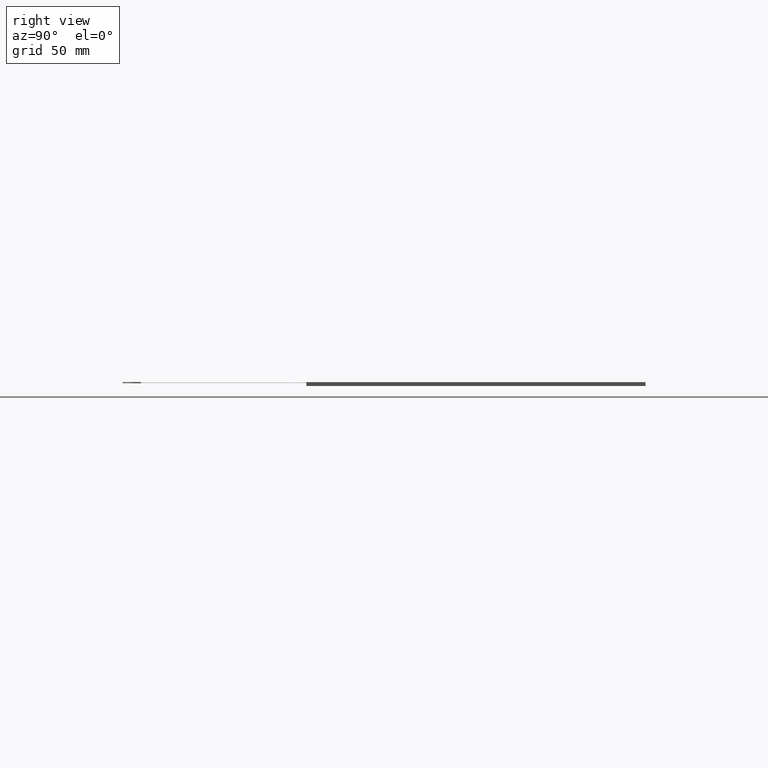
[diagram: clean part render]
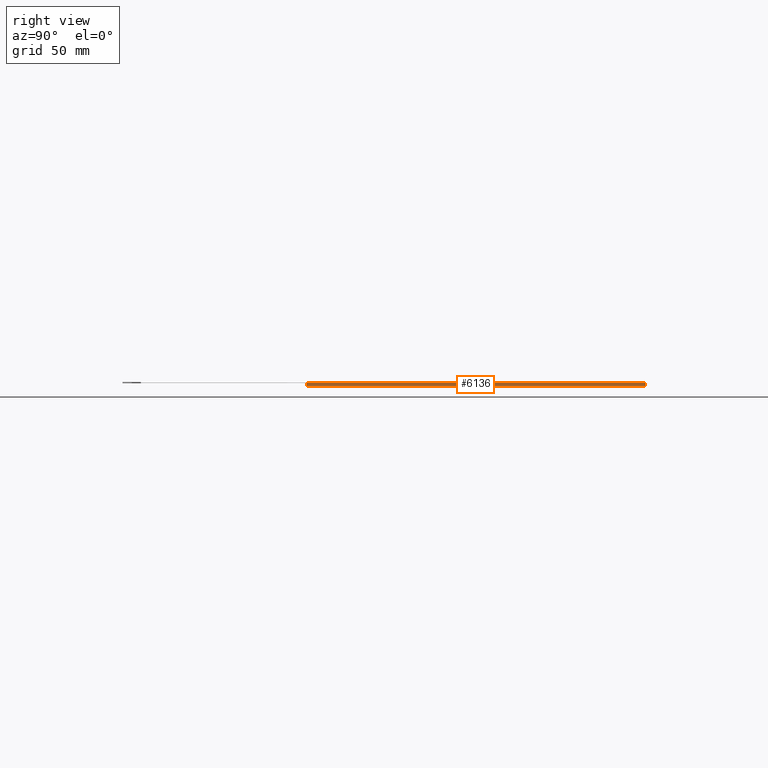
[diagram: same view with one face highlighted and labeled with its STEP entity id]
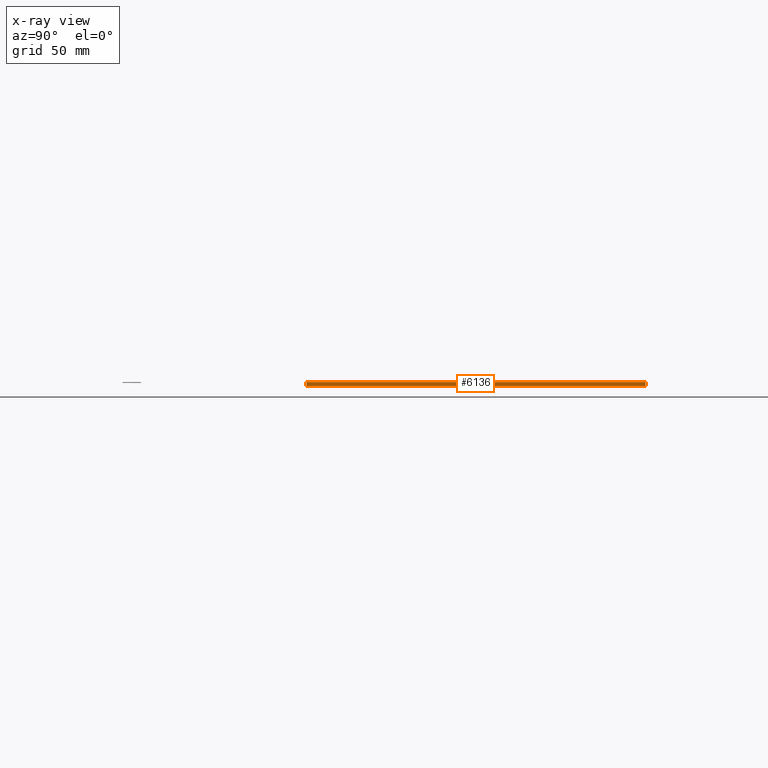
[diagram: x-ray of the same camera — body ghosted, the highlighted face saturated]
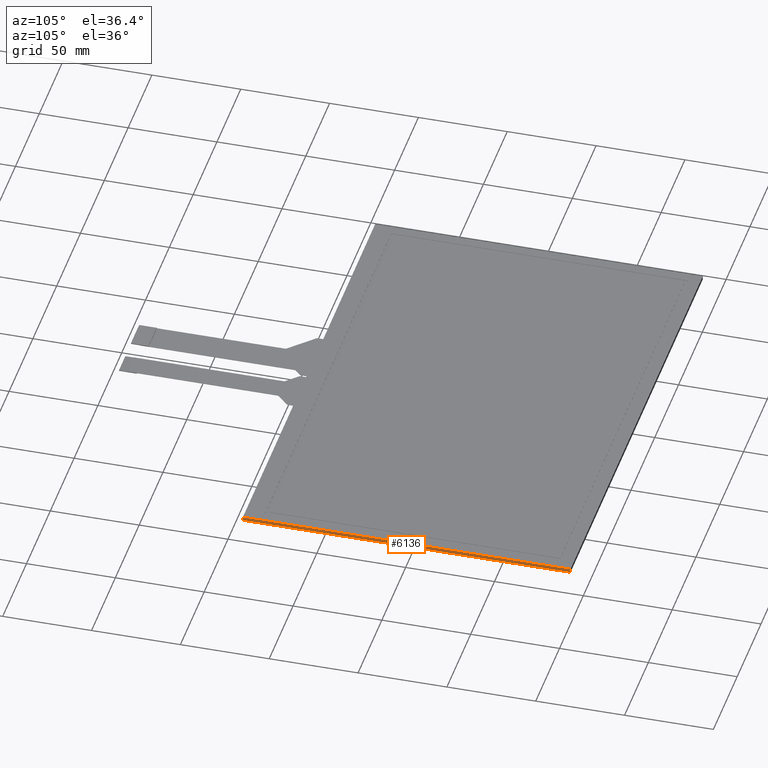
[diagram: same view with one face highlighted and labeled with its STEP entity id]
A machine part, right view. The second image highlights one B-rep face of the part: STEP entity #6136.
The next image is the same camera in x-ray: the body ghosted, the highlighted face saturated — about 0% of this face is hidden behind the body in this view.
A second angle (auxiliary view) of the same face is appended — the face is thin or edge-on in the first view.
In plain terms, the highlighted planar face has unit normal (1, 0, 0).
Its self-contained STEP definition (entity closure, byte-faithful):
#366=PLANE('',#6474);
#660=FACE_OUTER_BOUND('',#958,.T.);
#958=EDGE_LOOP('',(#5818,#5819,#5820,#5821));
#1793=LINE('',#9672,#2633);
#1798=LINE('',#9682,#2638);
#1799=LINE('',#9685,#2639);
#1800=LINE('',#9686,#2640);
#2633=VECTOR('',#7935,10.);
#2638=VECTOR('',#7944,10.);
#2639=VECTOR('',#7947,10.);
#2640=VECTOR('',#7948,10.);
#3234=VERTEX_POINT('',#9665);
#3237=VERTEX_POINT('',#9670);
#3240=VERTEX_POINT('',#9680);
#3241=VERTEX_POINT('',#9684);
#4097=EDGE_CURVE('',#3237,#3234,#1793,.T.);
#4102=EDGE_CURVE('',#3237,#3240,#1798,.T.);
#4103=EDGE_CURVE('',#3241,#3240,#1799,.T.);
#4104=EDGE_CURVE('',#3234,#3241,#1800,.T.);
#5818=ORIENTED_EDGE('',*,*,#4097,.F.);
#5819=ORIENTED_EDGE('',*,*,#4102,.T.);
#5820=ORIENTED_EDGE('',*,*,#4103,.F.);
#5821=ORIENTED_EDGE('',*,*,#4104,.F.);
#6136=ADVANCED_FACE('',(#660),#366,.T.);
#6474=AXIS2_PLACEMENT_3D('',#9683,#7945,#7946);
#7935=DIRECTION('',(-9.63317158026166E-17,1.,0.));
#7944=DIRECTION('',(0.,0.,-1.));
#7945=DIRECTION('center_axis',(1.,9.63317158026166E-17,0.));
#7946=DIRECTION('ref_axis',(9.63317158026166E-17,-1.,0.));
#7947=DIRECTION('',(9.63317158026166E-17,-1.,0.));
#7948=DIRECTION('',(0.,0.,-1.));
#9665=CARTESIAN_POINT('',(138.96,89.8500000000001,0.));
#9670=CARTESIAN_POINT('',(138.96,-94.55,0.));
#9672=CARTESIAN_POINT('',(138.96,-94.55,0.));
#9680=CARTESIAN_POINT('',(138.96,-94.55,-2.1));
#9682=CARTESIAN_POINT('',(138.96,-94.55,0.));
#9683=CARTESIAN_POINT('Origin',(138.96,89.8500000000001,0.));
#9684=CARTESIAN_POINT('',(138.96,89.8500000000001,-2.1));
#9685=CARTESIAN_POINT('',(138.96,-94.55,-2.1));
#9686=CARTESIAN_POINT('',(138.96,89.8500000000001,0.));